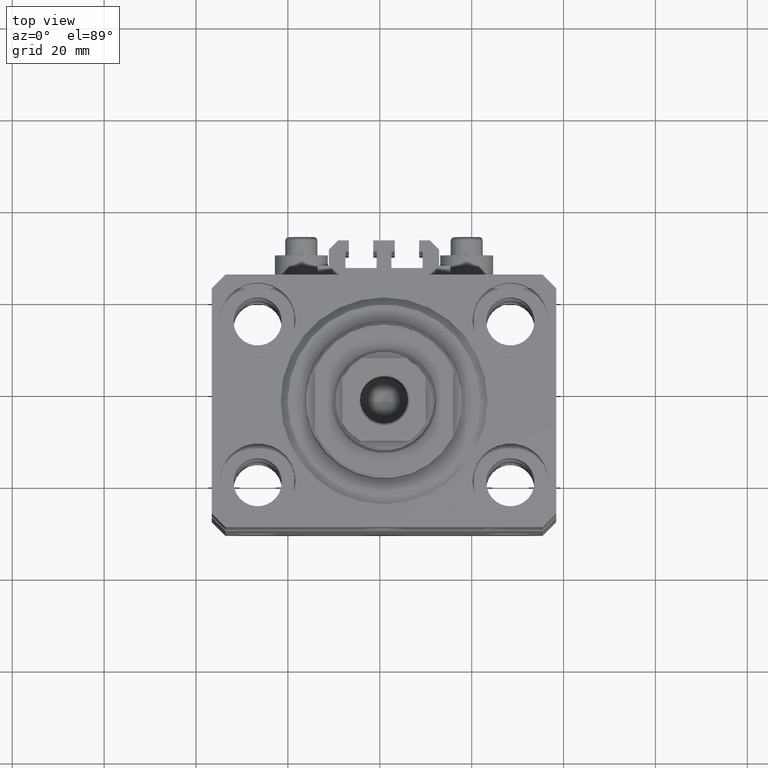
[diagram: clean part render]
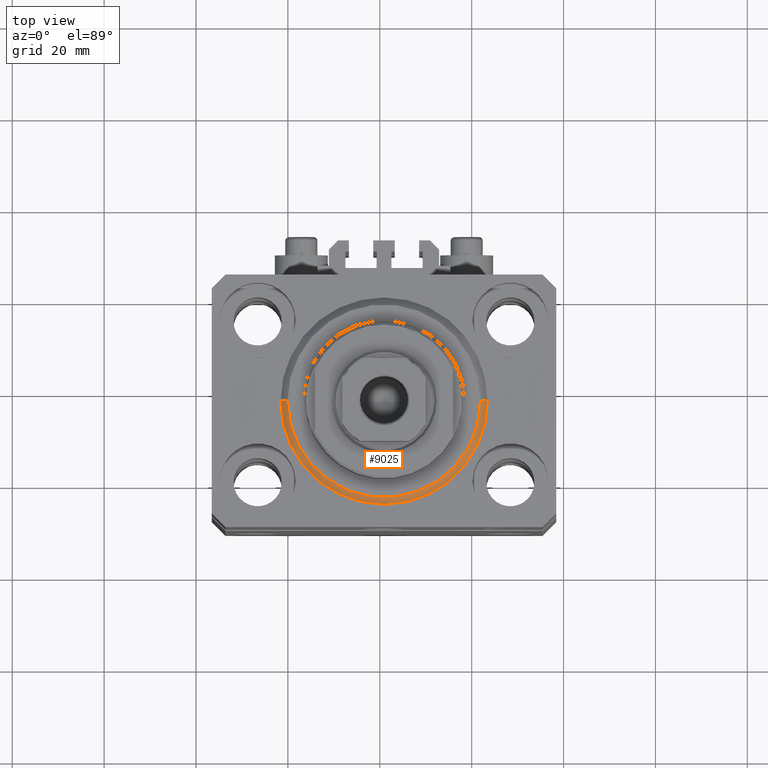
[diagram: same view with one face highlighted and labeled with its STEP entity id]
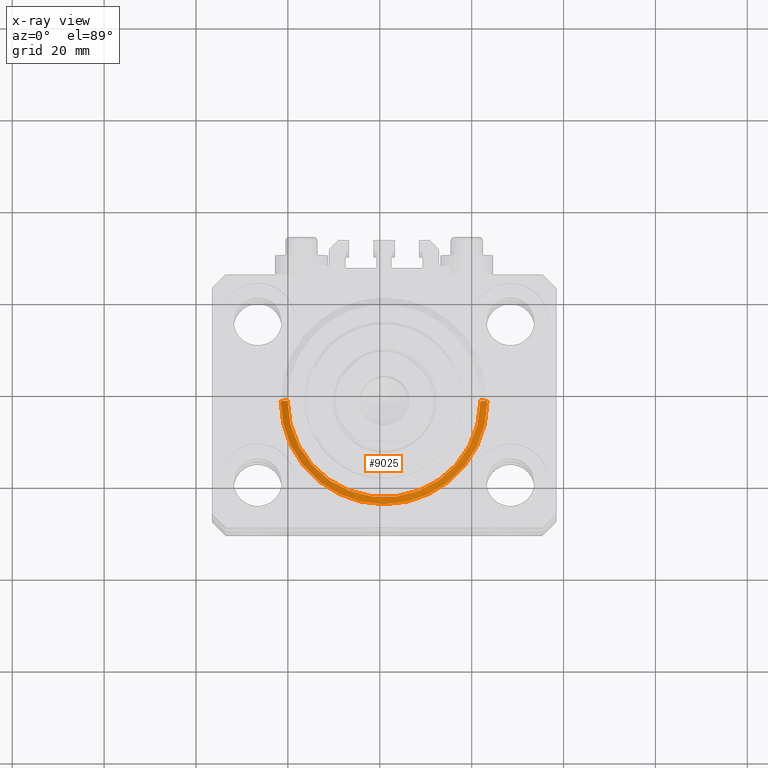
[diagram: x-ray of the same camera — body ghosted, the highlighted face saturated]
A machine part, top view. The second image highlights one B-rep face of the part: STEP entity #9025.
The next image is the same camera in x-ray: the body ghosted, the highlighted face saturated — about 0% of this face is hidden behind the body in this view.
In plain terms, the highlighted conical surface has half-angle 45 deg.
Its self-contained STEP definition (entity closure, byte-faithful):
#1576 = DIRECTION ( 'NONE',  ( -0.000000000000000000, -0.000000000000000000, 1.000000000000000000 ) ) ;
#1718 = CARTESIAN_POINT ( 'NONE',  ( 22.50000000000000355, 2.755455298081545172E-15, 1.500000000000001332 ) ) ;
#2087 = CARTESIAN_POINT ( 'NONE',  ( -20.99999999999998934, 2.663606788145492628E-15, 0.000000000000000000 ) ) ;
#2330 = AXIS2_PLACEMENT_3D ( 'NONE', #43002, #28855, #10223 ) ;
#3935 = VECTOR ( 'NONE', #7477, 1000.000000000000114 ) ;
#4220 = CARTESIAN_POINT ( 'NONE',  ( 20.99999999999998934, 0.000000000000000000, 0.000000000000000000 ) ) ;
#4761 = VECTOR ( 'NONE', #12377, 1000.000000000000114 ) ;
#6434 = AXIS2_PLACEMENT_3D ( 'NONE', #34345, #1576, #20254 ) ;
#7230 = ORIENTED_EDGE ( 'NONE', *, *, #39171, .T. ) ;
#7477 = DIRECTION ( 'NONE',  ( 0.7071067811865500152, 0.000000000000000000, 0.7071067811865451302 ) ) ;
#7576 = CARTESIAN_POINT ( 'NONE',  ( 0.000000000000000000, 0.000000000000000000, 1.500000000000001332 ) ) ;
#7943 = CARTESIAN_POINT ( 'NONE',  ( 22.50000000000000355, 0.000000000000000000, 1.500000000000001332 ) ) ;
#9025 = ADVANCED_FACE ( 'NONE', ( #33160 ), #13563, .T. ) ;
#10223 = DIRECTION ( 'NONE',  ( 1.000000000000000000, 0.000000000000000000, 0.000000000000000000 ) ) ;
#12377 = DIRECTION ( 'NONE',  ( -0.7071067811865500152, 8.659560562354963673E-17, 0.7071067811865451302 ) ) ;
#13092 = LINE ( 'NONE', #15954, #4761 ) ;
#13563 = CONICAL_SURFACE ( 'NONE', #30333, 22.50000000000000355, 0.7853981633974517207 ) ;
#15303 = CIRCLE ( 'NONE', #2330, 20.99999999999998934 ) ;
#15954 = CARTESIAN_POINT ( 'NONE',  ( -22.50000000000000355, 2.755455298081545172E-15, 1.500000000000001332 ) ) ;
#20254 = DIRECTION ( 'NONE',  ( 1.000000000000000000, 0.000000000000000000, 0.000000000000000000 ) ) ;
#24614 = EDGE_CURVE ( 'NONE', #36023, #45733, #13092, .T. ) ;
#25786 = VERTEX_POINT ( 'NONE', #1718 ) ;
#26502 = CARTESIAN_POINT ( 'NONE',  ( -22.50000000000000355, 0.000000000000000000, 1.500000000000001332 ) ) ;
#28855 = DIRECTION ( 'NONE',  ( -0.000000000000000000, -0.000000000000000000, -1.000000000000000000 ) ) ;
#29311 = ORIENTED_EDGE ( 'NONE', *, *, #31568, .F. ) ;
#30333 = AXIS2_PLACEMENT_3D ( 'NONE', #7576, #36743, #44410 ) ;
#31568 = EDGE_CURVE ( 'NONE', #45733, #25786, #37749, .T. ) ;
#33160 = FACE_OUTER_BOUND ( 'NONE', #36416, .T. ) ;
#34345 = CARTESIAN_POINT ( 'NONE',  ( 0.000000000000000000, 0.000000000000000000, 1.500000000000001332 ) ) ;
#36023 = VERTEX_POINT ( 'NONE', #2087 ) ;
#36416 = EDGE_LOOP ( 'NONE', ( #36632, #44736, #7230, #29311 ) ) ;
#36632 = ORIENTED_EDGE ( 'NONE', *, *, #24614, .F. ) ;
#36743 = DIRECTION ( 'NONE',  ( -0.000000000000000000, -0.000000000000000000, 1.000000000000000000 ) ) ;
#37040 = EDGE_CURVE ( 'NONE', #46113, #36023, #15303, .T. ) ;
#37749 = CIRCLE ( 'NONE', #6434, 22.50000000000000355 ) ;
#39171 = EDGE_CURVE ( 'NONE', #46113, #25786, #40253, .T. ) ;
#40253 = LINE ( 'NONE', #7943, #3935 ) ;
#43002 = CARTESIAN_POINT ( 'NONE',  ( 0.000000000000000000, 0.000000000000000000, 0.000000000000000000 ) ) ;
#44410 = DIRECTION ( 'NONE',  ( 1.000000000000000000, 0.000000000000000000, 0.000000000000000000 ) ) ;
#44736 = ORIENTED_EDGE ( 'NONE', *, *, #37040, .F. ) ;
#45733 = VERTEX_POINT ( 'NONE', #26502 ) ;
#46113 = VERTEX_POINT ( 'NONE', #4220 ) ;